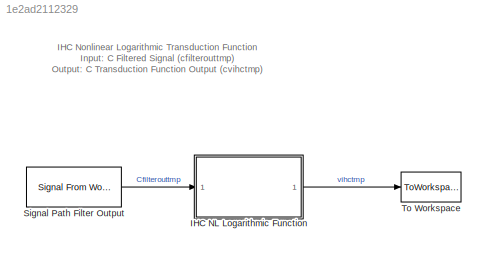
MODEL slx_1e2ad2112329
KIND model
CONFIG AbsTol = auto
CONFIG EnableMultiTasking = off
CONFIG FixedStep = auto
CONFIG InitFcn = IHC_NL_Logarithmic_Test_Parameters
CONFIG MaxStep = auto
CONFIG MinStep = auto
CONFIG RelTol = 1e-3
CONFIG SampleTimeConstraint = Unconstrained
CONFIG Solver = VariableStepAuto
CONFIG SolverName = VariableStepAuto
CONFIG StartTime = 0.0
CONFIG StopFcn = Verify_IHC_NL_Logarithmic_Function
CONFIG StopTime = testtime
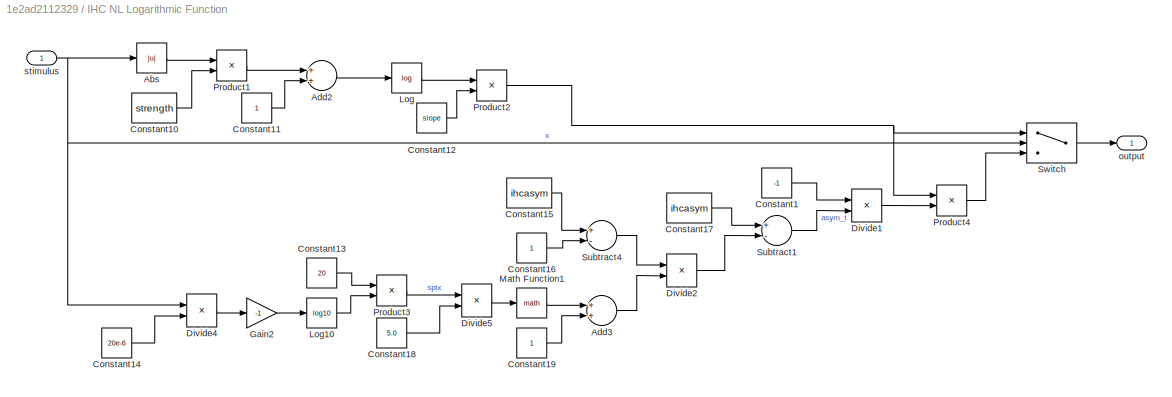
BLOCK [SubSystem] IHC NL Logarithmic Function
  Ports = [1, 1]
  RequestExecContextInheritance = off
  ShowPortLabels = none
BLOCK [Abs] IHC NL Logarithmic Function/Abs
  SaturateOnIntegerOverflow = off
BLOCK [Sum] IHC NL Logarithmic Function/Add2
  InputSameDT = off
  OutDataTypeStr = Inherit: Inherit via internal rule
  Ports = [2, 1]
  SaturateOnIntegerOverflow = off
BLOCK [Sum] IHC NL Logarithmic Function/Add3
  InputSameDT = off
  OutDataTypeStr = Inherit: Inherit via internal rule
  Ports = [2, 1]
  SaturateOnIntegerOverflow = off
BLOCK [Constant] IHC NL Logarithmic Function/Constant1
  SampleTime = -1
  Value = -1
BLOCK [Constant] IHC NL Logarithmic Function/Constant10
  SampleTime = -1
  Value = strength
BLOCK [Constant] IHC NL Logarithmic Function/Constant11
  SampleTime = -1
BLOCK [Constant] IHC NL Logarithmic Function/Constant12
  SampleTime = -1
  Value = slope
BLOCK [Constant] IHC NL Logarithmic Function/Constant13
  SampleTime = -1
  Value = 20
BLOCK [Constant] IHC NL Logarithmic Function/Constant14
  SampleTime = -1
  Value = 20e-6
BLOCK [Constant] IHC NL Logarithmic Function/Constant15
  SampleTime = -1
  Value = ihcasym
BLOCK [Constant] IHC NL Logarithmic Function/Constant16
  SampleTime = -1
BLOCK [Constant] IHC NL Logarithmic Function/Constant17
  SampleTime = -1
  Value = ihcasym
BLOCK [Constant] IHC NL Logarithmic Function/Constant18
  SampleTime = -1
  Value = 5.0
BLOCK [Constant] IHC NL Logarithmic Function/Constant19
  SampleTime = -1
BLOCK [Product] IHC NL Logarithmic Function/Divide1
  InputSameDT = off
  Inputs = */
  OutDataTypeStr = Inherit: Inherit via internal rule
  Ports = [2, 1]
BLOCK [Product] IHC NL Logarithmic Function/Divide2
  InputSameDT = off
  Inputs = */
  OutDataTypeStr = Inherit: Inherit via internal rule
  Ports = [2, 1]
BLOCK [Product] IHC NL Logarithmic Function/Divide4
  InputSameDT = off
  Inputs = */
  OutDataTypeStr = Inherit: Inherit via internal rule
  Ports = [2, 1]
BLOCK [Product] IHC NL Logarithmic Function/Divide5
  InputSameDT = off
  Inputs = */
  OutDataTypeStr = Inherit: Inherit via internal rule
  Ports = [2, 1]
BLOCK [Gain] IHC NL Logarithmic Function/Gain2
  Gain = -1
  OutDataTypeStr = Inherit: Inherit via internal rule
  ParamDataTypeStr = Inherit: Inherit via internal rule
  SaturateOnIntegerOverflow = off
BLOCK [Math] IHC NL Logarithmic Function/Log
  Operator = log
  Ports = [1, 1]
BLOCK [Math] IHC NL Logarithmic Function/Log10
  Operator = log10
  Ports = [1, 1]
BLOCK [Math] IHC NL Logarithmic Function/Math Function1
  Ports = [1, 1]
BLOCK [Product] IHC NL Logarithmic Function/Product1
  InputSameDT = off
  OutDataTypeStr = Inherit: Inherit via internal rule
  Ports = [2, 1]
  RndMeth = Floor
  SaturateOnIntegerOverflow = off
BLOCK [Product] IHC NL Logarithmic Function/Product2
  InputSameDT = off
  OutDataTypeStr = Inherit: Inherit via internal rule
  Ports = [2, 1]
  RndMeth = Floor
  SaturateOnIntegerOverflow = off
BLOCK [Product] IHC NL Logarithmic Function/Product3
  InputSameDT = off
  OutDataTypeStr = Inherit: Inherit via internal rule
  Ports = [2, 1]
  RndMeth = Floor
  SaturateOnIntegerOverflow = off
BLOCK [Product] IHC NL Logarithmic Function/Product4
  InputSameDT = off
  OutDataTypeStr = Inherit: Inherit via internal rule
  Ports = [2, 1]
  RndMeth = Floor
  SaturateOnIntegerOverflow = off
BLOCK [Sum] IHC NL Logarithmic Function/Subtract1
  InputSameDT = off
  Inputs = +-
  OutDataTypeStr = Inherit: Inherit via internal rule
  Ports = [2, 1]
  SaturateOnIntegerOverflow = off
BLOCK [Sum] IHC NL Logarithmic Function/Subtract4
  InputSameDT = off
  Inputs = +-
  OutDataTypeStr = Inherit: Inherit via internal rule
  Ports = [2, 1]
  SaturateOnIntegerOverflow = off
BLOCK [Switch] IHC NL Logarithmic Function/Switch
  InputSameDT = off
  SaturateOnIntegerOverflow = off
BLOCK [Outport] IHC NL Logarithmic Function/output
  IconDisplay = Port number
BLOCK [Inport] IHC NL Logarithmic Function/stimulus
  IconDisplay = Port number
BLOCK [Reference] Signal Path Filter Output  REF=dspsrcs4/Signal From
Workspace
  Ports = [0, 1]
  SourceBlock = dspsrcs4/Signal From\nWorkspace
  SourceProductBaseCode = DS
  SourceProductName = DSP System Toolbox
  SourceType = Signal From Workspace
BLOCK [ToWorkspace] To Workspace
  MaxDataPoints = inf
  Ports = [1]
  SampleTime = -1
  Save2DSignal = 2-D array (concatenate along first dimension)
  VariableName = vihctmp
ANNOTATION (root): IHC Nonlinear Logarithmic Transduction Function Input : C Filtered Signal (cfilterouttmp) Output : C Transduction Function Output (cvihctmp)
LINE IHC NL Logarithmic Function/Abs:1 -> IHC NL Logarithmic Function/Product1:1
LINE IHC NL Logarithmic Function/Add2:1 -> IHC NL Logarithmic Function/Log:1
LINE IHC NL Logarithmic Function/Add3:1 -> IHC NL Logarithmic Function/Divide2:2
LINE IHC NL Logarithmic Function/Constant10:1 -> IHC NL Logarithmic Function/Product1:2
LINE IHC NL Logarithmic Function/Constant11:1 -> IHC NL Logarithmic Function/Add2:2
LINE IHC NL Logarithmic Function/Constant12:1 -> IHC NL Logarithmic Function/Product2:2
LINE IHC NL Logarithmic Function/Constant13:1 -> IHC NL Logarithmic Function/Product3:1
LINE IHC NL Logarithmic Function/Constant14:1 -> IHC NL Logarithmic Function/Divide4:2
LINE IHC NL Logarithmic Function/Constant15:1 -> IHC NL Logarithmic Function/Subtract4:1
LINE IHC NL Logarithmic Function/Constant16:1 -> IHC NL Logarithmic Function/Subtract4:2
LINE IHC NL Logarithmic Function/Constant17:1 -> IHC NL Logarithmic Function/Subtract1:1
LINE IHC NL Logarithmic Function/Constant18:1 -> IHC NL Logarithmic Function/Divide5:2
LINE IHC NL Logarithmic Function/Constant19:1 -> IHC NL Logarithmic Function/Add3:2
LINE IHC NL Logarithmic Function/Constant1:1 -> IHC NL Logarithmic Function/Divide1:1
LINE IHC NL Logarithmic Function/Divide1:1 -> IHC NL Logarithmic Function/Product4:2
LINE IHC NL Logarithmic Function/Divide2:1 -> IHC NL Logarithmic Function/Subtract1:2
LINE IHC NL Logarithmic Function/Divide4:1 -> IHC NL Logarithmic Function/Gain2:1
LINE IHC NL Logarithmic Function/Divide5:1 -> IHC NL Logarithmic Function/Math Function1:1
LINE IHC NL Logarithmic Function/Gain2:1 -> IHC NL Logarithmic Function/Log10:1
LINE IHC NL Logarithmic Function/Log10:1 -> IHC NL Logarithmic Function/Product3:2
LINE IHC NL Logarithmic Function/Log:1 -> IHC NL Logarithmic Function/Product2:1
LINE IHC NL Logarithmic Function/Math Function1:1 -> IHC NL Logarithmic Function/Add3:1
LINE IHC NL Logarithmic Function/Product1:1 -> IHC NL Logarithmic Function/Add2:1
NET IHC NL Logarithmic Function/Product2:1 -> IHC NL Logarithmic Function/Product4:1, IHC NL Logarithmic Function/Switch:1
LINE IHC NL Logarithmic Function/Product3:1 -> IHC NL Logarithmic Function/Divide5:1
LINE IHC NL Logarithmic Function/Product4:1 -> IHC NL Logarithmic Function/Switch:3
LINE IHC NL Logarithmic Function/Subtract1:1 -> IHC NL Logarithmic Function/Divide1:2
LINE IHC NL Logarithmic Function/Subtract4:1 -> IHC NL Logarithmic Function/Divide2:1
LINE IHC NL Logarithmic Function/Switch:1 -> IHC NL Logarithmic Function/output:1
NET IHC NL Logarithmic Function/stimulus:1 -> IHC NL Logarithmic Function/Abs:1, IHC NL Logarithmic Function/Divide4:1, IHC NL Logarithmic Function/Switch:2
LINE IHC NL Logarithmic Function:1 -> To Workspace:1
LINE Signal Path Filter Output:1 -> IHC NL Logarithmic Function:1
note: NET lines group one-source signal fan-out (src -> all destinations, sorted); 1:1 wires keep LINE
